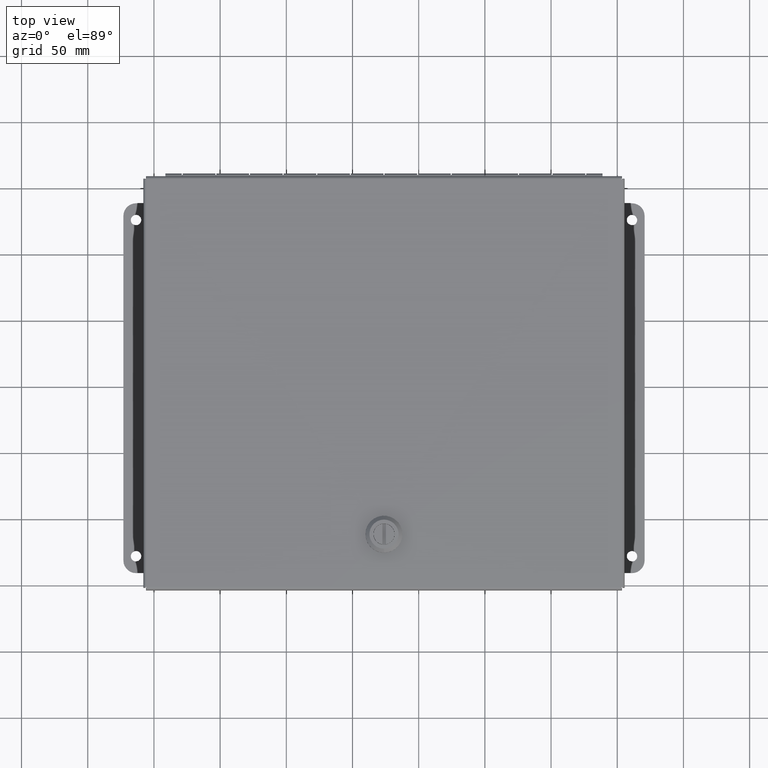
[diagram: clean part render]
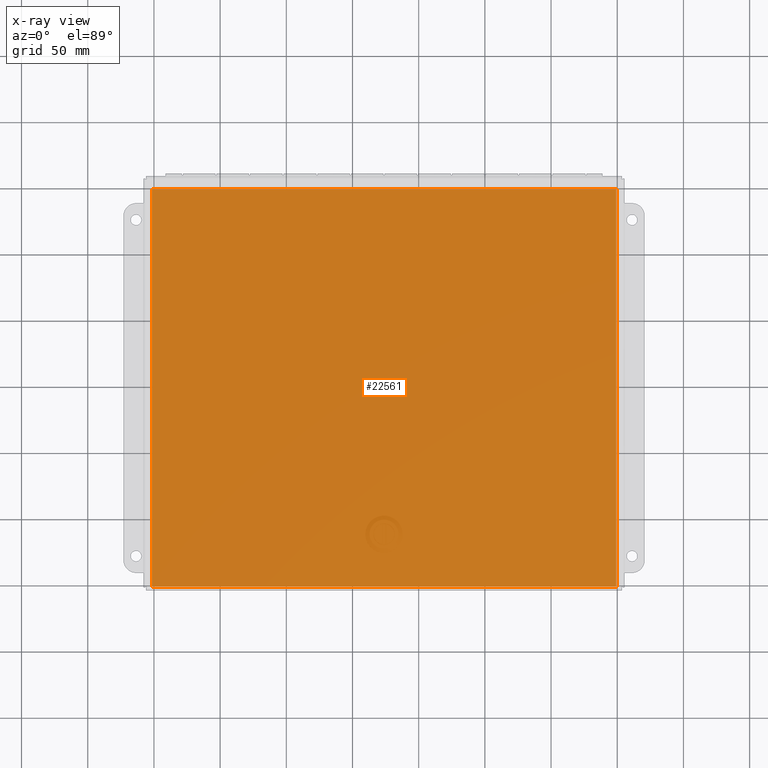
[diagram: x-ray — body ghosted, one internal face saturated and labeled with its STEP entity id]
A machine part, top view, then the same camera in x-ray: the body is ghosted and one INTERNAL B-rep face — a face not visible from any outside direction — is saturated and labeled: STEP entity #22561.
In plain terms, the highlighted planar face has unit normal (-0, 0, 1).
Its self-contained STEP definition (entity closure, byte-faithful):
#124 = CARTESIAN_POINT ( 'NONE',  ( -9.906750000000061007, -7.905649999999304178, -5.251500000000985935 ) ) ;
#614 = LINE ( 'NONE', #13468, #34164 ) ;
#1200 = ORIENTED_EDGE ( 'NONE', *, *, #36131, .T. ) ;
#2005 = ORIENTED_EDGE ( 'NONE', *, *, #26228, .T. ) ;
#3038 = LINE ( 'NONE', #13258, #24874 ) ;
#5452 = VERTEX_POINT ( 'NONE', #24850 ) ;
#5789 = EDGE_LOOP ( 'NONE', ( #34522, #1200, #2005, #40580 ) ) ;
#6209 = VERTEX_POINT ( 'NONE', #19094 ) ;
#7068 = DIRECTION ( 'NONE',  ( 5.284317631071219743E-15, 1.000000000000000000, -8.483830530972214611E-15 ) ) ;
#10577 = LINE ( 'NONE', #25720, #38247 ) ;
#13064 = CARTESIAN_POINT ( 'NONE',  ( -3.000000000000031974, -1.998899999999338872, -5.251500000000990376 ) ) ;
#13258 = CARTESIAN_POINT ( 'NONE',  ( -9.906750000000030809, -1.998899999999303789, -5.251500000001037449 ) ) ;
#13468 = CARTESIAN_POINT ( 'NONE',  ( 3.906749999999969525, -1.998899999999375288, -5.251500000000945079 ) ) ;
#13705 = VERTEX_POINT ( 'NONE', #31344 ) ;
#16542 = DIRECTION ( 'NONE',  ( -5.284317631071219743E-15, -1.000000000000000000, 8.483830530972214611E-15 ) ) ;
#19094 = CARTESIAN_POINT ( 'NONE',  ( 3.906750000000001055, 3.907850000000622881, -5.251500000000993928 ) ) ;
#22561 = ADVANCED_FACE ( 'NONE', ( #38753 ), #33474, .T. ) ;
#24850 = CARTESIAN_POINT ( 'NONE',  ( 3.906749999999937994, -7.905649999999376121, -5.251500000000893564 ) ) ;
#24874 = VECTOR ( 'NONE', #33792, 39.37007874015748143 ) ;
#25358 = LINE ( 'NONE', #40802, #42889 ) ;
#25720 = CARTESIAN_POINT ( 'NONE',  ( -3.000000000000002220, 3.907850000000657964, -5.251500000001041002 ) ) ;
#26228 = EDGE_CURVE ( 'NONE', #13705, #26595, #3038, .T. ) ;
#26595 = VERTEX_POINT ( 'NONE', #124 ) ;
#30906 = DIRECTION ( 'NONE',  ( 1.000000000000000000, -5.234363839187016733E-15, 6.696790086201103527E-15 ) ) ;
#31344 = CARTESIAN_POINT ( 'NONE',  ( -9.906749999999998835, 3.907850000000693935, -5.251500000001086299 ) ) ;
#33474 = PLANE ( 'NONE',  #43554 ) ;
#33792 = DIRECTION ( 'NONE',  ( -5.051199935611869439E-15, -1.000000000000000000, 8.483830530972216189E-15 ) ) ;
#34164 = VECTOR ( 'NONE', #7068, 39.37007874015748143 ) ;
#34522 = ORIENTED_EDGE ( 'NONE', *, *, #35608, .T. ) ;
#35608 = EDGE_CURVE ( 'NONE', #5452, #6209, #614, .T. ) ;
#36131 = EDGE_CURVE ( 'NONE', #6209, #13705, #10577, .T. ) ;
#38247 = VECTOR ( 'NONE', #39701, 39.37007874015748143 ) ;
#38753 = FACE_OUTER_BOUND ( 'NONE', #5789, .T. ) ;
#39371 = EDGE_CURVE ( 'NONE', #26595, #5452, #25358, .T. ) ;
#39701 = DIRECTION ( 'NONE',  ( -1.000000000000000000, 5.084502463534577308E-15, -6.696790086201103527E-15 ) ) ;
#40263 = DIRECTION ( 'NONE',  ( -6.696790086201060140E-15, 8.483830530972249321E-15, 1.000000000000000000 ) ) ;
#40580 = ORIENTED_EDGE ( 'NONE', *, *, #39371, .T. ) ;
#40802 = CARTESIAN_POINT ( 'NONE',  ( -3.000000000000063061, -7.905649999999339705, -5.251500000000940638 ) ) ;
#42889 = VECTOR ( 'NONE', #30906, 39.37007874015748143 ) ;
#43554 = AXIS2_PLACEMENT_3D ( 'NONE', #13064, #40263, #16542 ) ;